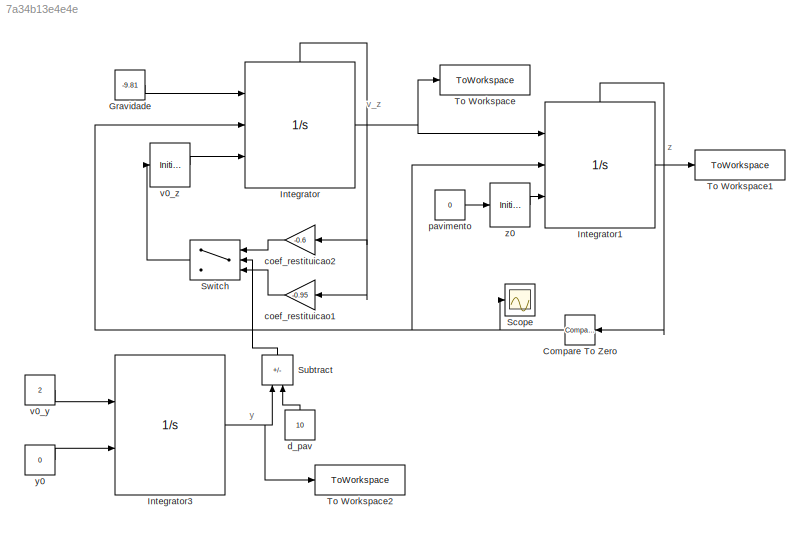
MODEL slx_7a34b13e4e4e
KIND model
CONFIG AbsTol = auto
CONFIG EnableMultiTasking = off
CONFIG FixedStep = auto
CONFIG MaxStep = auto
CONFIG MinStep = auto
CONFIG RelTol = 1e-3
CONFIG SampleTimeConstraint = Unconstrained
CONFIG SolverName = VariableStepAuto
CONFIG StartTime = 0.0
CONFIG StopTime = 15
WORKSPACE source: mxarray member
WORKSPACE eslasticidade = 0
WORKSPACE teste = 0
BLOCK [Reference] Compare To Zero  REF=simulink/Logic and Bit
Operations/Compare
To Zero
  Ports = [1, 1]
  SourceBlock = simulink/Logic and Bit\nOperations/Compare\nTo Zero
  SourceProductBaseCode = SL
  SourceType = Compare To Zero
BLOCK [Constant] Gravidade
  Value = -9.81
BLOCK [Integrator] Integrator
  ContinuousStateAttributes = 'Velocidade'
  ExternalReset = rising
  InitialConditionSource = external
  Ports = [3, 1, 0, 0, 1]
  ShowStatePort = on
BLOCK [Integrator] Integrator1
  ExternalReset = rising
  InitialConditionSource = external
  Ports = [3, 1, 0, 0, 1]
  ShowStatePort = on
BLOCK [Integrator] Integrator3
  InitialConditionSource = external
  Ports = [2, 1]
BLOCK [Scope] Scope
  Floating = off
  NumInputPorts = 1
  Ports = [1]
  ScopeSpecificationString = Simulink.scopes.TimeScopeBlockCfg('CurrentConfiguration', extmgr.ConfigurationSet(extmgr.Configuration('Core','General UI',true),extmgr.Configuration('Core','Source UI',true),extmgr.Configuration('Sources','WiredSimulink',true),extmgr.Configuration('Visuals','Time Domain',true,'SerializedDisplays',{struct('MinYLimReal','-0.125','MaxYLimReal','1.125','YLabelReal','','MinYLimMag','0.00000','MaxYLimM...<+1323ch>
BLOCK [Sum] Subtract
  IconShape = rectangular
  Inputs = +-
  NameLocation = right
  Ports = [2, 1]
BLOCK [Switch] Switch
  Criteria = u2 > Threshold
  InputSameDT = off
  NameLocation = top
  SaturateOnIntegerOverflow = off
BLOCK [ToWorkspace] To Workspace
  FixptAsFi = on
  MaxDataPoints = inf
  Ports = [1]
  SampleTime = -1
  SaveFormat = Timeseries
  VariableName = v_z
BLOCK [ToWorkspace] To Workspace1
  FixptAsFi = on
  MaxDataPoints = inf
  Ports = [1]
  SampleTime = -1
  SaveFormat = Timeseries
  VariableName = z
BLOCK [ToWorkspace] To Workspace2
  FixptAsFi = on
  MaxDataPoints = inf
  Ports = [1]
  SampleTime = -1
  SaveFormat = Timeseries
  VariableName = y
BLOCK [Gain] coef_restituicao1
  Gain = -0.95
  Tag = teste
BLOCK [Gain] coef_restituicao2
  Gain = -0.6
  Tag = teste
BLOCK [Constant] d_pav
  NameLocation = right
  Value = 10
BLOCK [Constant] pavimento
  Value = 0
BLOCK [Constant] v0_y
  Value = 2
BLOCK [InitialCondition] v0_z
  Value = 0
BLOCK [Constant] y0
  Value = 0
BLOCK [InitialCondition] z0
  Value = 10
ANNOTATION (root): v_z
ANNOTATION (root): y
ANNOTATION (root): z
NET Compare To Zero:1 -> Integrator1:2, Integrator:2, Scope:1
LINE Gravidade:1 -> Integrator:1
LINE Integrator1:1 -> To Workspace1:1
LINE Integrator1:state -> Compare To Zero:1
NET Integrator3:1 -> Subtract:1, To Workspace2:1
NET Integrator:1 -> Integrator1:1, To Workspace:1
NET Integrator:state -> coef_restituicao1:1, coef_restituicao2:1
LINE Subtract:1 -> Switch:2
LINE Switch:1 -> v0_z:1
LINE coef_restituicao1:1 -> Switch:3
LINE coef_restituicao2:1 -> Switch:1
LINE d_pav:1 -> Subtract:2
LINE pavimento:1 -> z0:1
LINE v0_y:1 -> Integrator3:1
LINE v0_z:1 -> Integrator:3
LINE y0:1 -> Integrator3:2
LINE z0:1 -> Integrator1:3
note: NET lines group one-source signal fan-out (src -> all destinations, sorted); 1:1 wires keep LINE
